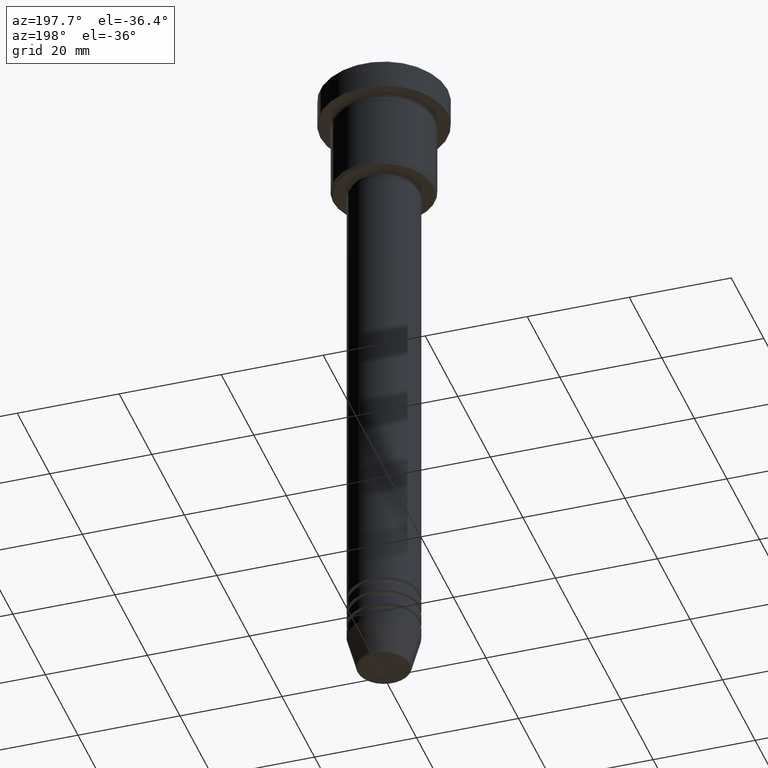
[diagram: clean part render]
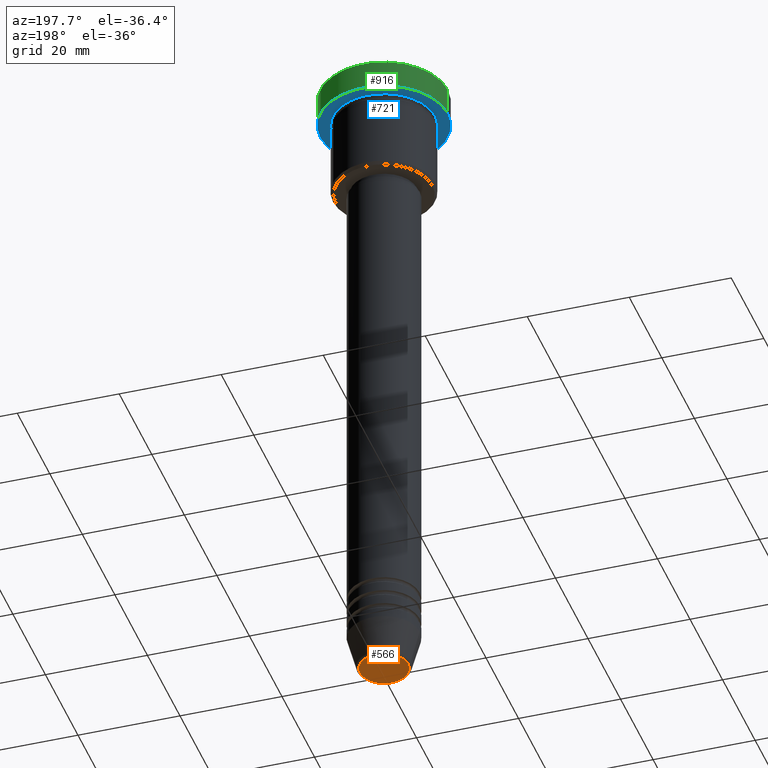
[diagram: same view with three faces highlighted in distinct colors, each labeled with its STEP entity id]
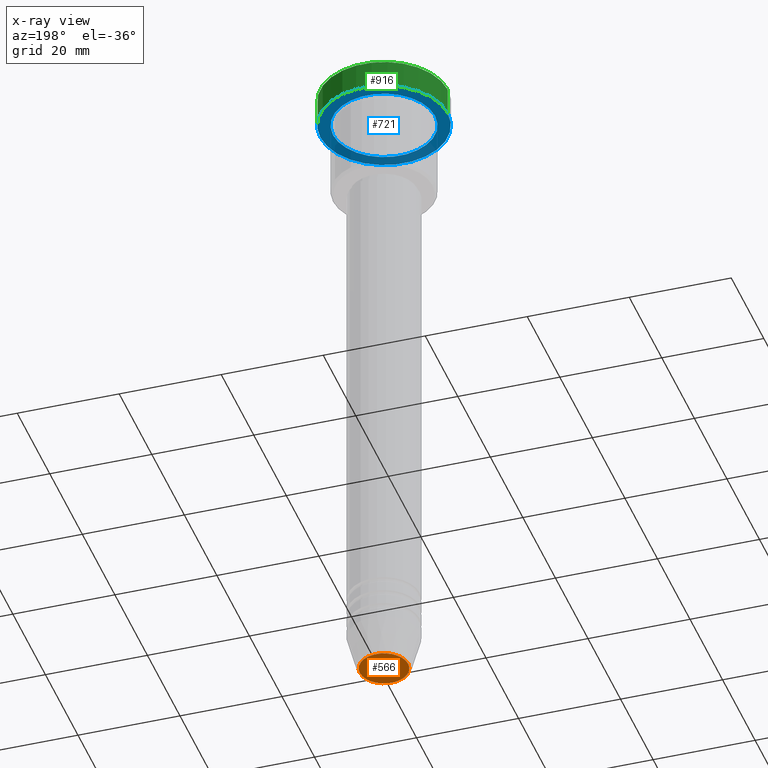
[diagram: x-ray of the same camera — body ghosted, the three highlighted faces saturated]
A machine part, auxiliary view with three faces highlighted in distinct colors.
The next image is the same camera in x-ray (body ghosted, the three faces saturated) — at least one of them is partly hidden behind the body in this view.
Their STEP definitions:

[orange] entity #566 — the highlighted planar face has unit normal (0, -0, 1).
#58 = ORIENTED_EDGE ( 'NONE', *, *, #1089, .T. ) ;
#68 = DIRECTION ( 'NONE',  ( 0.000000000000000000, 0.000000000000000000, -1.000000000000000000 ) ) ;
#75 = CARTESIAN_POINT ( 'NONE',  ( 0.000000000000000000, 0.000000000000000000, -132.0000000000000000 ) ) ;
#183 = AXIS2_PLACEMENT_3D ( 'NONE', #1034, #623, #1172 ) ;
#213 = PLANE ( 'NONE',  #183 ) ;
#263 = DIRECTION ( 'NONE',  ( 1.000000000000000000, 0.000000000000000000, 0.000000000000000000 ) ) ;
#344 = VERTEX_POINT ( 'NONE', #750 ) ;
#388 = ORIENTED_EDGE ( 'NONE', *, *, #713, .T. ) ;
#452 = DIRECTION ( 'NONE',  ( 1.000000000000000000, 0.000000000000000000, 0.000000000000000000 ) ) ;
#523 = AXIS2_PLACEMENT_3D ( 'NONE', #975, #68, #263 ) ;
#566 = ADVANCED_FACE ( 'NONE', ( #767 ), #213, .F. ) ;
#617 = EDGE_LOOP ( 'NONE', ( #388, #58 ) ) ;
#623 = DIRECTION ( 'NONE',  ( 0.000000000000000000, -0.000000000000000000, 1.000000000000000000 ) ) ;
#624 = CIRCLE ( 'NONE', #523, 4.740692158992654726 ) ;
#713 = EDGE_CURVE ( 'NONE', #913, #344, #726, .T. ) ;
#726 = CIRCLE ( 'NONE', #962, 4.740692158992654726 ) ;
#750 = CARTESIAN_POINT ( 'NONE',  ( -4.740692158992654726, 6.101402971097978774E-16, -132.0000000000000000 ) ) ;
#767 = FACE_OUTER_BOUND ( 'NONE', #617, .T. ) ;
#804 = DIRECTION ( 'NONE',  ( 0.000000000000000000, 0.000000000000000000, -1.000000000000000000 ) ) ;
#913 = VERTEX_POINT ( 'NONE', #1133 ) ;
#962 = AXIS2_PLACEMENT_3D ( 'NONE', #75, #804, #452 ) ;
#975 = CARTESIAN_POINT ( 'NONE',  ( 0.000000000000000000, 0.000000000000000000, -132.0000000000000000 ) ) ;
#1034 = CARTESIAN_POINT ( 'NONE',  ( 0.000000000000000000, 0.000000000000000000, -132.0000000000000000 ) ) ;
#1089 = EDGE_CURVE ( 'NONE', #344, #913, #624, .T. ) ;
#1133 = CARTESIAN_POINT ( 'NONE',  ( 4.740692158992654726, 0.000000000000000000, -132.0000000000000000 ) ) ;
#1172 = DIRECTION ( 'NONE',  ( 1.000000000000000000, 0.000000000000000000, 0.000000000000000000 ) ) ;

[blue] entity #721 — the highlighted planar face has unit normal (0, 0, -1).
#1 = VERTEX_POINT ( 'NONE', #1027 ) ;
#14 = AXIS2_PLACEMENT_3D ( 'NONE', #412, #505, #73 ) ;
#49 = VERTEX_POINT ( 'NONE', #700 ) ;
#63 = EDGE_CURVE ( 'NONE', #821, #1, #516, .T. ) ;
#73 = DIRECTION ( 'NONE',  ( 1.000000000000000000, 0.000000000000000000, 0.000000000000000000 ) ) ;
#107 = DIRECTION ( 'NONE',  ( -1.000000000000000000, 0.000000000000000000, 0.000000000000000000 ) ) ;
#135 = ORIENTED_EDGE ( 'NONE', *, *, #730, .T. ) ;
#143 = ORIENTED_EDGE ( 'NONE', *, *, #955, .T. ) ;
#151 = VERTEX_POINT ( 'NONE', #974 ) ;
#177 = DIRECTION ( 'NONE',  ( -1.000000000000000000, 0.000000000000000000, 0.000000000000000000 ) ) ;
#192 = DIRECTION ( 'NONE',  ( 0.000000000000000000, 0.000000000000000000, -1.000000000000000000 ) ) ;
#234 = CARTESIAN_POINT ( 'NONE',  ( 0.000000000000000000, 0.000000000000000000, -5.999999999999996447 ) ) ;
#237 = AXIS2_PLACEMENT_3D ( 'NONE', #856, #679, #397 ) ;
#284 = PLANE ( 'NONE',  #1181 ) ;
#289 = ORIENTED_EDGE ( 'NONE', *, *, #63, .F. ) ;
#296 = CIRCLE ( 'NONE', #857, 10.00000000000000000 ) ;
#397 = DIRECTION ( 'NONE',  ( 1.000000000000000000, 0.000000000000000000, 0.000000000000000000 ) ) ;
#412 = CARTESIAN_POINT ( 'NONE',  ( 0.000000000000000000, 0.000000000000000000, -5.999999999999996447 ) ) ;
#431 = CIRCLE ( 'NONE', #464, 10.00000000000000000 ) ;
#464 = AXIS2_PLACEMENT_3D ( 'NONE', #752, #630, #107 ) ;
#505 = DIRECTION ( 'NONE',  ( -0.000000000000000000, -0.000000000000000000, 1.000000000000000000 ) ) ;
#516 = CIRCLE ( 'NONE', #14, 12.50000000000000000 ) ;
#528 = EDGE_LOOP ( 'NONE', ( #135, #143 ) ) ;
#553 = EDGE_CURVE ( 'NONE', #1, #821, #761, .T. ) ;
#561 = DIRECTION ( 'NONE',  ( -1.000000000000000000, 0.000000000000000000, -0.000000000000000000 ) ) ;
#630 = DIRECTION ( 'NONE',  ( -0.000000000000000000, -0.000000000000000000, 1.000000000000000000 ) ) ;
#649 = CARTESIAN_POINT ( 'NONE',  ( 0.000000000000000000, 12.50000000000000000, -5.999999999999996447 ) ) ;
#679 = DIRECTION ( 'NONE',  ( -0.000000000000000000, -0.000000000000000000, 1.000000000000000000 ) ) ;
#681 = EDGE_LOOP ( 'NONE', ( #1049, #289 ) ) ;
#700 = CARTESIAN_POINT ( 'NONE',  ( -10.00000000000000000, 0.000000000000000000, -5.999999999999996447 ) ) ;
#721 = ADVANCED_FACE ( 'NONE', ( #1092, #1105 ), #284, .T. ) ;
#730 = EDGE_CURVE ( 'NONE', #49, #151, #431, .T. ) ;
#752 = CARTESIAN_POINT ( 'NONE',  ( 0.000000000000000000, 0.000000000000000000, -5.999999999999996447 ) ) ;
#761 = CIRCLE ( 'NONE', #237, 12.50000000000000000 ) ;
#766 = CARTESIAN_POINT ( 'NONE',  ( -12.50000000000000000, 1.530808498934191521E-15, -5.999999999999996447 ) ) ;
#821 = VERTEX_POINT ( 'NONE', #766 ) ;
#856 = CARTESIAN_POINT ( 'NONE',  ( 0.000000000000000000, 0.000000000000000000, -5.999999999999996447 ) ) ;
#857 = AXIS2_PLACEMENT_3D ( 'NONE', #234, #860, #177 ) ;
#860 = DIRECTION ( 'NONE',  ( -0.000000000000000000, -0.000000000000000000, 1.000000000000000000 ) ) ;
#955 = EDGE_CURVE ( 'NONE', #151, #49, #296, .T. ) ;
#974 = CARTESIAN_POINT ( 'NONE',  ( 10.00000000000000000, 1.224646799147353256E-15, -5.999999999999996447 ) ) ;
#1027 = CARTESIAN_POINT ( 'NONE',  ( 12.50000000000000000, 0.000000000000000000, -5.999999999999996447 ) ) ;
#1049 = ORIENTED_EDGE ( 'NONE', *, *, #553, .F. ) ;
#1092 = FACE_BOUND ( 'NONE', #528, .T. ) ;
#1105 = FACE_OUTER_BOUND ( 'NONE', #681, .T. ) ;
#1181 = AXIS2_PLACEMENT_3D ( 'NONE', #649, #192, #561 ) ;

[green] entity #916 — the highlighted cylindrical surface (partial cylindrical patch) has radius 12.5 mm, axis along (-0, -0, 1).
#1 = VERTEX_POINT ( 'NONE', #1027 ) ;
#13 = CARTESIAN_POINT ( 'NONE',  ( 0.000000000000000000, 0.000000000000000000, -0.4999999999999640288 ) ) ;
#77 = ORIENTED_EDGE ( 'NONE', *, *, #947, .T. ) ;
#124 = DIRECTION ( 'NONE',  ( 0.000000000000000000, 0.000000000000000000, -1.000000000000000000 ) ) ;
#127 = CARTESIAN_POINT ( 'NONE',  ( 12.50000000000000000, 0.000000000000000000, 0.000000000000000000 ) ) ;
#131 = CARTESIAN_POINT ( 'NONE',  ( -12.50000000000000000, 1.530808498934191521E-15, 0.000000000000000000 ) ) ;
#221 = LINE ( 'NONE', #127, #520 ) ;
#229 = LINE ( 'NONE', #131, #563 ) ;
#237 = AXIS2_PLACEMENT_3D ( 'NONE', #856, #679, #397 ) ;
#309 = CARTESIAN_POINT ( 'NONE',  ( -12.50000000000000000, 1.530808498934191521E-15, -0.4999999999999640288 ) ) ;
#313 = CIRCLE ( 'NONE', #657, 12.50000000000000000 ) ;
#397 = DIRECTION ( 'NONE',  ( 1.000000000000000000, 0.000000000000000000, 0.000000000000000000 ) ) ;
#409 = AXIS2_PLACEMENT_3D ( 'NONE', #870, #786, #1144 ) ;
#413 = EDGE_CURVE ( 'NONE', #489, #837, #313, .T. ) ;
#418 = CARTESIAN_POINT ( 'NONE',  ( 12.50000000000000000, 0.000000000000000000, -0.4999999999999640288 ) ) ;
#474 = DIRECTION ( 'NONE',  ( 1.000000000000000000, 0.000000000000000000, 0.000000000000000000 ) ) ;
#480 = DIRECTION ( 'NONE',  ( -0.000000000000000000, -0.000000000000000000, 1.000000000000000000 ) ) ;
#489 = VERTEX_POINT ( 'NONE', #309 ) ;
#520 = VECTOR ( 'NONE', #480, 1000.000000000000000 ) ;
#543 = EDGE_CURVE ( 'NONE', #1, #837, #221, .T. ) ;
#553 = EDGE_CURVE ( 'NONE', #1, #821, #761, .T. ) ;
#563 = VECTOR ( 'NONE', #699, 1000.000000000000000 ) ;
#568 = ORIENTED_EDGE ( 'NONE', *, *, #543, .F. ) ;
#657 = AXIS2_PLACEMENT_3D ( 'NONE', #13, #124, #474 ) ;
#666 = EDGE_LOOP ( 'NONE', ( #764, #77, #1080, #568 ) ) ;
#679 = DIRECTION ( 'NONE',  ( -0.000000000000000000, -0.000000000000000000, 1.000000000000000000 ) ) ;
#699 = DIRECTION ( 'NONE',  ( -0.000000000000000000, -0.000000000000000000, 1.000000000000000000 ) ) ;
#761 = CIRCLE ( 'NONE', #237, 12.50000000000000000 ) ;
#764 = ORIENTED_EDGE ( 'NONE', *, *, #553, .T. ) ;
#766 = CARTESIAN_POINT ( 'NONE',  ( -12.50000000000000000, 1.530808498934191521E-15, -5.999999999999996447 ) ) ;
#786 = DIRECTION ( 'NONE',  ( -0.000000000000000000, -0.000000000000000000, 1.000000000000000000 ) ) ;
#821 = VERTEX_POINT ( 'NONE', #766 ) ;
#837 = VERTEX_POINT ( 'NONE', #418 ) ;
#856 = CARTESIAN_POINT ( 'NONE',  ( 0.000000000000000000, 0.000000000000000000, -5.999999999999996447 ) ) ;
#870 = CARTESIAN_POINT ( 'NONE',  ( 0.000000000000000000, 0.000000000000000000, 0.000000000000000000 ) ) ;
#916 = ADVANCED_FACE ( 'NONE', ( #1038 ), #944, .T. ) ;
#944 = CYLINDRICAL_SURFACE ( 'NONE', #409, 12.50000000000000000 ) ;
#947 = EDGE_CURVE ( 'NONE', #821, #489, #229, .T. ) ;
#1027 = CARTESIAN_POINT ( 'NONE',  ( 12.50000000000000000, 0.000000000000000000, -5.999999999999996447 ) ) ;
#1038 = FACE_OUTER_BOUND ( 'NONE', #666, .T. ) ;
#1080 = ORIENTED_EDGE ( 'NONE', *, *, #413, .T. ) ;
#1144 = DIRECTION ( 'NONE',  ( 1.000000000000000000, 0.000000000000000000, 0.000000000000000000 ) ) ;